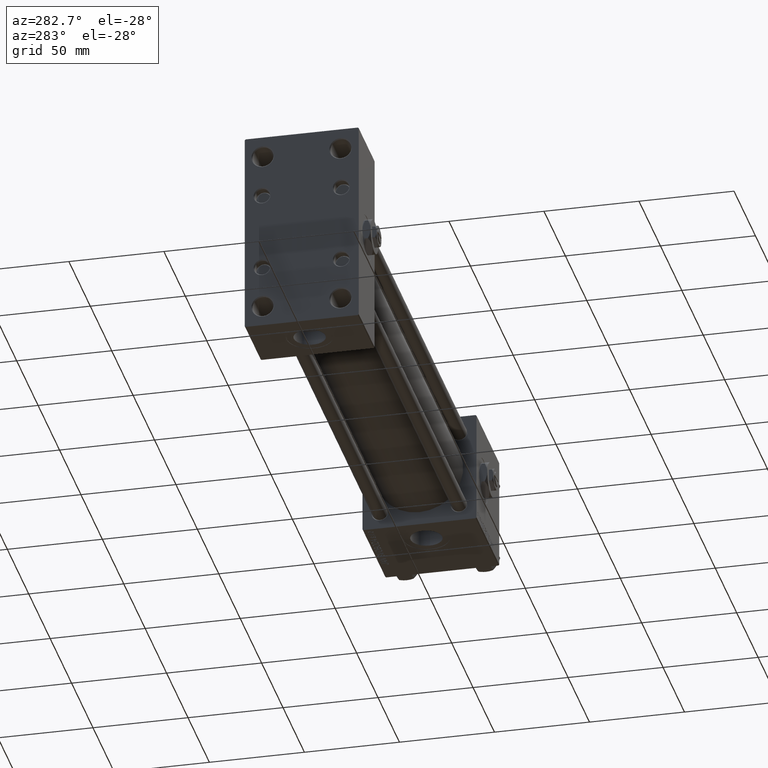
[diagram: clean part render]
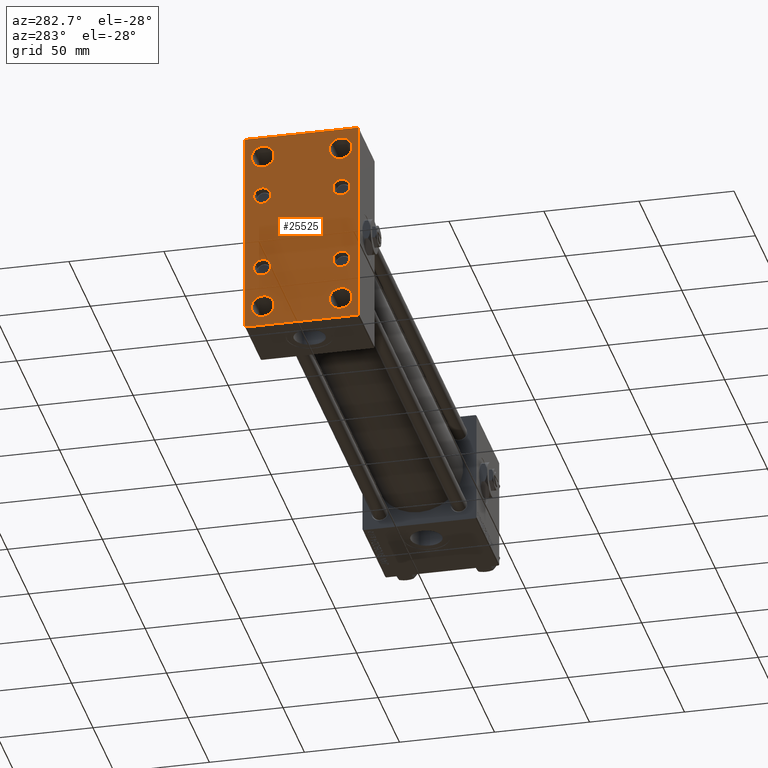
[diagram: same view with one face highlighted and labeled with its STEP entity id]
A machine part, auxiliary view. The second image highlights one B-rep face of the part: STEP entity #25525.
In plain terms, the highlighted planar face has unit normal (-1, 0, 0).
Its self-contained STEP definition (entity closure, byte-faithful):
#172 = LINE ( 'NONE', #21249, #44844 ) ;
#256 = CARTESIAN_POINT ( 'NONE',  ( 0.000000000000000000, 20.84999999999999787, 25.34999999999999076 ) ) ;
#464 = ORIENTED_EDGE ( 'NONE', *, *, #25060, .T. ) ;
#470 = CARTESIAN_POINT ( 'NONE',  ( 0.000000000000000000, 20.50000000000000355, 43.50000000000000000 ) ) ;
#479 = DIRECTION ( 'NONE',  ( 0.000000000000000000, 0.000000000000000000, 1.000000000000000000 ) ) ;
#530 = DIRECTION ( 'NONE',  ( 0.000000000000000000, 0.000000000000000000, 1.000000000000000000 ) ) ;
#536 = DIRECTION ( 'NONE',  ( 1.000000000000000000, -0.000000000000000000, 0.000000000000000000 ) ) ;
#666 = VERTEX_POINT ( 'NONE', #35229 ) ;
#742 = ORIENTED_EDGE ( 'NONE', *, *, #33876, .T. ) ;
#883 = EDGE_CURVE ( 'NONE', #1567, #2008, #36547, .T. ) ;
#994 = ORIENTED_EDGE ( 'NONE', *, *, #18031, .F. ) ;
#1033 = AXIS2_PLACEMENT_3D ( 'NONE', #30685, #14090, #18321 ) ;
#1123 = CARTESIAN_POINT ( 'NONE',  ( 0.000000000000000000, 41.99999999999997868, -41.99999999999997868 ) ) ;
#1230 = ORIENTED_EDGE ( 'NONE', *, *, #21209, .T. ) ;
#1488 = CARTESIAN_POINT ( 'NONE',  ( 0.000000000000000000, -20.84999999999999076, 20.85000000000000497 ) ) ;
#1567 = VERTEX_POINT ( 'NONE', #13162 ) ;
#1734 = VECTOR ( 'NONE', #14656, 1000.000000000000114 ) ;
#2008 = VERTEX_POINT ( 'NONE', #4285 ) ;
#2154 = CARTESIAN_POINT ( 'NONE',  ( 0.000000000000000000, 30.00000000000000355, -54.49999999999998579 ) ) ;
#2155 = CARTESIAN_POINT ( 'NONE',  ( 0.000000000000000000, 30.00000000000000355, 54.50000000000001421 ) ) ;
#2236 = ORIENTED_EDGE ( 'NONE', *, *, #25148, .T. ) ;
#2352 = FACE_BOUND ( 'NONE', #46398, .T. ) ;
#2403 = AXIS2_PLACEMENT_3D ( 'NONE', #8096, #32865, #479 ) ;
#2701 = AXIS2_PLACEMENT_3D ( 'NONE', #48993, #12938, #47965 ) ;
#2739 = CARTESIAN_POINT ( 'NONE',  ( 0.000000000000000000, 20.84999999999999787, -25.34999999999999076 ) ) ;
#3163 = CARTESIAN_POINT ( 'NONE',  ( 0.000000000000000000, 29.49999999999997513, -54.49999999999998579 ) ) ;
#3182 = VERTEX_POINT ( 'NONE', #45810 ) ;
#3750 = AXIS2_PLACEMENT_3D ( 'NONE', #8604, #24696, #16799 ) ;
#4285 = CARTESIAN_POINT ( 'NONE',  ( 0.000000000000000000, -20.84999999999999076, -25.34999999999999432 ) ) ;
#4443 = ORIENTED_EDGE ( 'NONE', *, *, #22416, .T. ) ;
#5132 = VERTEX_POINT ( 'NONE', #3163 ) ;
#5224 = VECTOR ( 'NONE', #24292, 1000.000000000000114 ) ;
#5836 = DIRECTION ( 'NONE',  ( 0.000000000000000000, 0.000000000000000000, -1.000000000000000000 ) ) ;
#6452 = CARTESIAN_POINT ( 'NONE',  ( 0.000000000000000000, 20.84999999999999787, 16.35000000000001208 ) ) ;
#6465 = CARTESIAN_POINT ( 'NONE',  ( 0.000000000000000000, -20.49999999999999645, 43.50000000000000000 ) ) ;
#7162 = EDGE_CURVE ( 'NONE', #39746, #30973, #51654, .T. ) ;
#7626 = EDGE_LOOP ( 'NONE', ( #41059, #32558 ) ) ;
#8096 = CARTESIAN_POINT ( 'NONE',  ( 0.000000000000000000, 20.50000000000000355, 43.50000000000000000 ) ) ;
#8485 = CARTESIAN_POINT ( 'NONE',  ( 0.000000000000000000, 20.84999999999999787, -20.85000000000000142 ) ) ;
#8604 = CARTESIAN_POINT ( 'NONE',  ( 0.000000000000000000, -20.84999999999999076, -20.85000000000000497 ) ) ;
#9061 = AXIS2_PLACEMENT_3D ( 'NONE', #1488, #17822, #10401 ) ;
#9179 = CARTESIAN_POINT ( 'NONE',  ( 0.000000000000000000, 20.50000000000000355, 49.50000000000005684 ) ) ;
#9994 = DIRECTION ( 'NONE',  ( -1.000000000000000000, 0.000000000000000000, -0.000000000000000000 ) ) ;
#10401 = DIRECTION ( 'NONE',  ( 0.000000000000000000, 0.000000000000000000, 1.000000000000000000 ) ) ;
#10692 = ORIENTED_EDGE ( 'NONE', *, *, #36482, .T. ) ;
#10717 = ORIENTED_EDGE ( 'NONE', *, *, #36406, .F. ) ;
#10789 = CIRCLE ( 'NONE', #31821, 6.000000000000060396 ) ;
#11208 = CIRCLE ( 'NONE', #13724, 4.499999999999990230 ) ;
#11471 = EDGE_CURVE ( 'NONE', #30973, #39746, #27438, .T. ) ;
#11804 = ORIENTED_EDGE ( 'NONE', *, *, #46164, .T. ) ;
#12035 = VERTEX_POINT ( 'NONE', #43339 ) ;
#12289 = CIRCLE ( 'NONE', #34984, 4.499999999999990230 ) ;
#12420 = CARTESIAN_POINT ( 'NONE',  ( -0.000000000000000000, -42.00000000000000000, 42.00000000000000000 ) ) ;
#12628 = VECTOR ( 'NONE', #5836, 1000.000000000000000 ) ;
#12938 = DIRECTION ( 'NONE',  ( 1.000000000000000000, -0.000000000000000000, 0.000000000000000000 ) ) ;
#13162 = CARTESIAN_POINT ( 'NONE',  ( 0.000000000000000000, -20.84999999999999076, -16.35000000000001208 ) ) ;
#13203 = CARTESIAN_POINT ( 'NONE',  ( 0.000000000000000000, 20.50000000000000355, -43.50000000000000000 ) ) ;
#13235 = DIRECTION ( 'NONE',  ( -0.000000000000000000, -0.7071067811865474617, -0.7071067811865474617 ) ) ;
#13239 = AXIS2_PLACEMENT_3D ( 'NONE', #26441, #18278, #50630 ) ;
#13724 = AXIS2_PLACEMENT_3D ( 'NONE', #42471, #26190, #31174 ) ;
#13944 = CARTESIAN_POINT ( 'NONE',  ( 0.000000000000000000, 0.000000000000000000, 0.000000000000000000 ) ) ;
#14090 = DIRECTION ( 'NONE',  ( 1.000000000000000000, -0.000000000000000000, 0.000000000000000000 ) ) ;
#14656 = DIRECTION ( 'NONE',  ( 0.000000000000000000, 0.7071067811865474617, -0.7071067811865474617 ) ) ;
#15646 = EDGE_CURVE ( 'NONE', #20599, #38429, #31788, .T. ) ;
#15929 = CARTESIAN_POINT ( 'NONE',  ( 0.000000000000000000, 20.50000000000000355, -37.49999999999993605 ) ) ;
#16414 = DIRECTION ( 'NONE',  ( 0.000000000000000000, 0.000000000000000000, 1.000000000000000000 ) ) ;
#16421 = LINE ( 'NONE', #1123, #19379 ) ;
#16439 = VERTEX_POINT ( 'NONE', #6452 ) ;
#16799 = DIRECTION ( 'NONE',  ( 0.000000000000000000, 0.000000000000000000, 1.000000000000000000 ) ) ;
#17026 = CIRCLE ( 'NONE', #2701, 4.499999999999990230 ) ;
#17375 = CARTESIAN_POINT ( 'NONE',  ( 0.000000000000000000, 29.50000000000000355, 54.50000000000001421 ) ) ;
#17662 = FACE_BOUND ( 'NONE', #45532, .T. ) ;
#17822 = DIRECTION ( 'NONE',  ( 1.000000000000000000, -0.000000000000000000, 0.000000000000000000 ) ) ;
#17912 = CARTESIAN_POINT ( 'NONE',  ( 0.000000000000000000, -20.84999999999999076, 20.85000000000000497 ) ) ;
#18022 = EDGE_CURVE ( 'NONE', #31181, #25642, #29232, .T. ) ;
#18031 = EDGE_CURVE ( 'NONE', #666, #32037, #27222, .T. ) ;
#18278 = DIRECTION ( 'NONE',  ( 1.000000000000000000, -0.000000000000000000, 0.000000000000000000 ) ) ;
#18321 = DIRECTION ( 'NONE',  ( 0.000000000000000000, 0.000000000000000000, 1.000000000000000000 ) ) ;
#18406 = ORIENTED_EDGE ( 'NONE', *, *, #18022, .T. ) ;
#18685 = DIRECTION ( 'NONE',  ( 0.000000000000000000, 0.000000000000000000, 1.000000000000000000 ) ) ;
#19379 = VECTOR ( 'NONE', #13235, 1000.000000000000114 ) ;
#20205 = ORIENTED_EDGE ( 'NONE', *, *, #25870, .T. ) ;
#20387 = VERTEX_POINT ( 'NONE', #34452 ) ;
#20398 = VERTEX_POINT ( 'NONE', #17375 ) ;
#20531 = EDGE_CURVE ( 'NONE', #20387, #28872, #10789, .T. ) ;
#20599 = VERTEX_POINT ( 'NONE', #22045 ) ;
#20720 = VERTEX_POINT ( 'NONE', #34645 ) ;
#21209 = EDGE_CURVE ( 'NONE', #32139, #42084, #46107, .T. ) ;
#21249 = CARTESIAN_POINT ( 'NONE',  ( 0.000000000000000000, -41.99999999999978684, -42.00000000000036948 ) ) ;
#21442 = EDGE_CURVE ( 'NONE', #28872, #20387, #25140, .T. ) ;
#21821 = CARTESIAN_POINT ( 'NONE',  ( 0.000000000000000000, -20.84999999999999076, 25.34999999999999432 ) ) ;
#22009 = AXIS2_PLACEMENT_3D ( 'NONE', #13203, #36624, #48994 ) ;
#22045 = CARTESIAN_POINT ( 'NONE',  ( 0.000000000000000000, -20.84999999999999076, 16.35000000000001208 ) ) ;
#22416 = EDGE_CURVE ( 'NONE', #20720, #30780, #49528, .T. ) ;
#22439 = LINE ( 'NONE', #2154, #25016 ) ;
#22818 = DIRECTION ( 'NONE',  ( 1.000000000000000000, -0.000000000000000000, 0.000000000000000000 ) ) ;
#22963 = DIRECTION ( 'NONE',  ( 1.000000000000000000, -0.000000000000000000, 0.000000000000000000 ) ) ;
#23101 = LINE ( 'NONE', #38868, #1734 ) ;
#23728 = DIRECTION ( 'NONE',  ( 1.000000000000000000, -0.000000000000000000, 0.000000000000000000 ) ) ;
#24040 = AXIS2_PLACEMENT_3D ( 'NONE', #6465, #22818, #42534 ) ;
#24292 = DIRECTION ( 'NONE',  ( -0.000000000000000000, 0.7071067811865474617, 0.7071067811865474617 ) ) ;
#24513 = CARTESIAN_POINT ( 'NONE',  ( 0.000000000000000000, 20.50000000000000355, -43.50000000000000000 ) ) ;
#24607 = CIRCLE ( 'NONE', #1033, 6.000000000000060396 ) ;
#24696 = DIRECTION ( 'NONE',  ( 1.000000000000000000, -0.000000000000000000, 0.000000000000000000 ) ) ;
#25016 = VECTOR ( 'NONE', #26652, 1000.000000000000000 ) ;
#25060 = EDGE_CURVE ( 'NONE', #3182, #5132, #16421, .T. ) ;
#25140 = CIRCLE ( 'NONE', #2403, 6.000000000000060396 ) ;
#25148 = EDGE_CURVE ( 'NONE', #39448, #3182, #38213, .T. ) ;
#25179 = AXIS2_PLACEMENT_3D ( 'NONE', #36581, #23728, #530 ) ;
#25525 = ADVANCED_FACE ( 'NONE', ( #30027, #33707, #38404, #25826, #46060, #17662, #2352, #33450, #25565 ), #33961, .T. ) ;
#25565 = FACE_OUTER_BOUND ( 'NONE', #45269, .T. ) ;
#25642 = VERTEX_POINT ( 'NONE', #26860 ) ;
#25744 = AXIS2_PLACEMENT_3D ( 'NONE', #8485, #44303, #16414 ) ;
#25826 = FACE_BOUND ( 'NONE', #48435, .T. ) ;
#25870 = EDGE_CURVE ( 'NONE', #20398, #39448, #23101, .T. ) ;
#26190 = DIRECTION ( 'NONE',  ( 1.000000000000000000, -0.000000000000000000, 0.000000000000000000 ) ) ;
#26441 = CARTESIAN_POINT ( 'NONE',  ( 0.000000000000000000, -20.49999999999999645, -43.50000000000000000 ) ) ;
#26463 = CARTESIAN_POINT ( 'NONE',  ( 0.000000000000000000, 20.84999999999999787, -16.35000000000001208 ) ) ;
#26522 = CARTESIAN_POINT ( 'NONE',  ( 0.000000000000000000, 30.00000000000000355, 54.00000000000001421 ) ) ;
#26590 = DIRECTION ( 'NONE',  ( -0.000000000000000000, 0.000000000000000000, 1.000000000000000000 ) ) ;
#26652 = DIRECTION ( 'NONE',  ( 0.000000000000000000, -1.000000000000000000, -2.312964634635742957E-16 ) ) ;
#26860 = CARTESIAN_POINT ( 'NONE',  ( 0.000000000000000000, -20.49999999999999645, -49.50000000000005684 ) ) ;
#27222 = LINE ( 'NONE', #42981, #42642 ) ;
#27237 = EDGE_LOOP ( 'NONE', ( #37306, #10692 ) ) ;
#27438 = CIRCLE ( 'NONE', #25744, 4.499999999999990230 ) ;
#27629 = EDGE_CURVE ( 'NONE', #42084, #32139, #37937, .T. ) ;
#27954 = CARTESIAN_POINT ( 'NONE',  ( 0.000000000000000000, -29.49999999999998224, -54.50000000000000000 ) ) ;
#28419 = DIRECTION ( 'NONE',  ( 0.000000000000000000, 0.000000000000000000, 1.000000000000000000 ) ) ;
#28872 = VERTEX_POINT ( 'NONE', #9179 ) ;
#29232 = CIRCLE ( 'NONE', #13239, 6.000000000000060396 ) ;
#29378 = CARTESIAN_POINT ( 'NONE',  ( 0.000000000000000000, 30.00000000000000355, 54.50000000000001421 ) ) ;
#29845 = ORIENTED_EDGE ( 'NONE', *, *, #41051, .T. ) ;
#30027 = FACE_BOUND ( 'NONE', #7626, .T. ) ;
#30273 = EDGE_LOOP ( 'NONE', ( #43707, #4443 ) ) ;
#30465 = VERTEX_POINT ( 'NONE', #27954 ) ;
#30685 = CARTESIAN_POINT ( 'NONE',  ( 0.000000000000000000, -20.49999999999999645, -43.50000000000000000 ) ) ;
#30780 = VERTEX_POINT ( 'NONE', #38664 ) ;
#30973 = VERTEX_POINT ( 'NONE', #2739 ) ;
#31174 = DIRECTION ( 'NONE',  ( 0.000000000000000000, 0.000000000000000000, 1.000000000000000000 ) ) ;
#31181 = VERTEX_POINT ( 'NONE', #37958 ) ;
#31788 = CIRCLE ( 'NONE', #9061, 4.499999999999990230 ) ;
#31821 = AXIS2_PLACEMENT_3D ( 'NONE', #470, #32597, #48641 ) ;
#32037 = VERTEX_POINT ( 'NONE', #40433 ) ;
#32139 = VERTEX_POINT ( 'NONE', #35333 ) ;
#32558 = ORIENTED_EDGE ( 'NONE', *, *, #20531, .T. ) ;
#32597 = DIRECTION ( 'NONE',  ( 1.000000000000000000, -0.000000000000000000, 0.000000000000000000 ) ) ;
#32865 = DIRECTION ( 'NONE',  ( 1.000000000000000000, -0.000000000000000000, 0.000000000000000000 ) ) ;
#33450 = FACE_BOUND ( 'NONE', #27237, .T. ) ;
#33707 = FACE_BOUND ( 'NONE', #30273, .T. ) ;
#33876 = EDGE_CURVE ( 'NONE', #25642, #31181, #24607, .T. ) ;
#33961 = PLANE ( 'NONE',  #48772 ) ;
#34187 = EDGE_CURVE ( 'NONE', #666, #12035, #40320, .T. ) ;
#34293 = EDGE_CURVE ( 'NONE', #2008, #1567, #17026, .T. ) ;
#34452 = CARTESIAN_POINT ( 'NONE',  ( 0.000000000000000000, 20.50000000000000355, 37.49999999999993605 ) ) ;
#34566 = DIRECTION ( 'NONE',  ( 0.000000000000000000, 0.000000000000000000, 1.000000000000000000 ) ) ;
#34645 = CARTESIAN_POINT ( 'NONE',  ( 0.000000000000000000, -20.49999999999999645, 37.49999999999993605 ) ) ;
#34984 = AXIS2_PLACEMENT_3D ( 'NONE', #17912, #46828, #18685 ) ;
#35229 = CARTESIAN_POINT ( 'NONE',  ( 0.000000000000000000, -29.99999999999999645, 54.00000000000002132 ) ) ;
#35333 = CARTESIAN_POINT ( 'NONE',  ( 0.000000000000000000, 20.50000000000000355, -49.50000000000005684 ) ) ;
#36406 = EDGE_CURVE ( 'NONE', #20398, #12035, #45143, .T. ) ;
#36482 = EDGE_CURVE ( 'NONE', #16439, #43927, #11208, .T. ) ;
#36547 = CIRCLE ( 'NONE', #3750, 4.499999999999990230 ) ;
#36581 = CARTESIAN_POINT ( 'NONE',  ( 0.000000000000000000, -20.49999999999999645, 43.50000000000000000 ) ) ;
#36624 = DIRECTION ( 'NONE',  ( 1.000000000000000000, -0.000000000000000000, 0.000000000000000000 ) ) ;
#37275 = AXIS2_PLACEMENT_3D ( 'NONE', #48132, #22963, #28419 ) ;
#37306 = ORIENTED_EDGE ( 'NONE', *, *, #40055, .T. ) ;
#37627 = DIRECTION ( 'NONE',  ( 0.000000000000000000, 0.000000000000000000, 1.000000000000000000 ) ) ;
#37698 = ORIENTED_EDGE ( 'NONE', *, *, #15646, .T. ) ;
#37728 = AXIS2_PLACEMENT_3D ( 'NONE', #24513, #536, #37627 ) ;
#37937 = CIRCLE ( 'NONE', #22009, 6.000000000000060396 ) ;
#37958 = CARTESIAN_POINT ( 'NONE',  ( 0.000000000000000000, -20.49999999999999645, -37.49999999999993605 ) ) ;
#38213 = LINE ( 'NONE', #2155, #12628 ) ;
#38404 = FACE_BOUND ( 'NONE', #48673, .T. ) ;
#38429 = VERTEX_POINT ( 'NONE', #21821 ) ;
#38664 = CARTESIAN_POINT ( 'NONE',  ( 0.000000000000000000, -20.49999999999999645, 49.50000000000005684 ) ) ;
#38826 = ORIENTED_EDGE ( 'NONE', *, *, #34187, .T. ) ;
#38868 = CARTESIAN_POINT ( 'NONE',  ( 0.000000000000000000, 42.00000000000000711, 42.00000000000000711 ) ) ;
#38991 = ORIENTED_EDGE ( 'NONE', *, *, #34293, .T. ) ;
#39134 = ORIENTED_EDGE ( 'NONE', *, *, #7162, .T. ) ;
#39157 = CIRCLE ( 'NONE', #24040, 6.000000000000060396 ) ;
#39448 = VERTEX_POINT ( 'NONE', #26522 ) ;
#39746 = VERTEX_POINT ( 'NONE', #26463 ) ;
#40055 = EDGE_CURVE ( 'NONE', #43927, #16439, #51564, .T. ) ;
#40320 = LINE ( 'NONE', #12420, #5224 ) ;
#40433 = CARTESIAN_POINT ( 'NONE',  ( 0.000000000000000000, -29.99999999999999645, -53.99999999999996447 ) ) ;
#41051 = EDGE_CURVE ( 'NONE', #30465, #32037, #172, .T. ) ;
#41059 = ORIENTED_EDGE ( 'NONE', *, *, #21442, .T. ) ;
#41192 = DIRECTION ( 'NONE',  ( 0.000000000000000000, -1.000000000000000000, -1.156482317317871478E-16 ) ) ;
#41455 = VECTOR ( 'NONE', #41192, 1000.000000000000000 ) ;
#42084 = VERTEX_POINT ( 'NONE', #15929 ) ;
#42457 = CARTESIAN_POINT ( 'NONE',  ( 0.000000000000000000, 20.84999999999999787, -20.85000000000000142 ) ) ;
#42471 = CARTESIAN_POINT ( 'NONE',  ( 0.000000000000000000, 20.84999999999999787, 20.85000000000000142 ) ) ;
#42534 = DIRECTION ( 'NONE',  ( 0.000000000000000000, 0.000000000000000000, 1.000000000000000000 ) ) ;
#42642 = VECTOR ( 'NONE', #46416, 1000.000000000000000 ) ;
#42981 = CARTESIAN_POINT ( 'NONE',  ( 0.000000000000000000, -29.99999999999999645, 54.50000000000000711 ) ) ;
#43021 = EDGE_LOOP ( 'NONE', ( #11804, #37698 ) ) ;
#43339 = CARTESIAN_POINT ( 'NONE',  ( 0.000000000000000000, -29.50000000000000711, 54.50000000000000711 ) ) ;
#43707 = ORIENTED_EDGE ( 'NONE', *, *, #45251, .T. ) ;
#43927 = VERTEX_POINT ( 'NONE', #256 ) ;
#44234 = ORIENTED_EDGE ( 'NONE', *, *, #11471, .T. ) ;
#44303 = DIRECTION ( 'NONE',  ( 1.000000000000000000, -0.000000000000000000, 0.000000000000000000 ) ) ;
#44410 = DIRECTION ( 'NONE',  ( 0.000000000000000000, -0.7071067811865524577, 0.7071067811865426878 ) ) ;
#44844 = VECTOR ( 'NONE', #44410, 1000.000000000000000 ) ;
#45143 = LINE ( 'NONE', #29378, #41455 ) ;
#45251 = EDGE_CURVE ( 'NONE', #30780, #20720, #39157, .T. ) ;
#45269 = EDGE_LOOP ( 'NONE', ( #2236, #464, #51554, #29845, #994, #38826, #10717, #20205 ) ) ;
#45532 = EDGE_LOOP ( 'NONE', ( #46717, #38991 ) ) ;
#45810 = CARTESIAN_POINT ( 'NONE',  ( 0.000000000000000000, 30.00000000000000355, -53.99999999999995737 ) ) ;
#46060 = FACE_BOUND ( 'NONE', #43021, .T. ) ;
#46107 = CIRCLE ( 'NONE', #37728, 6.000000000000060396 ) ;
#46164 = EDGE_CURVE ( 'NONE', #38429, #20599, #12289, .T. ) ;
#46398 = EDGE_LOOP ( 'NONE', ( #39134, #44234 ) ) ;
#46416 = DIRECTION ( 'NONE',  ( 0.000000000000000000, 0.000000000000000000, -1.000000000000000000 ) ) ;
#46717 = ORIENTED_EDGE ( 'NONE', *, *, #883, .T. ) ;
#46828 = DIRECTION ( 'NONE',  ( 1.000000000000000000, -0.000000000000000000, 0.000000000000000000 ) ) ;
#46869 = ORIENTED_EDGE ( 'NONE', *, *, #27629, .T. ) ;
#47965 = DIRECTION ( 'NONE',  ( 0.000000000000000000, 0.000000000000000000, 1.000000000000000000 ) ) ;
#48132 = CARTESIAN_POINT ( 'NONE',  ( 0.000000000000000000, 20.84999999999999787, 20.85000000000000142 ) ) ;
#48435 = EDGE_LOOP ( 'NONE', ( #46869, #1230 ) ) ;
#48491 = EDGE_CURVE ( 'NONE', #5132, #30465, #22439, .T. ) ;
#48641 = DIRECTION ( 'NONE',  ( 0.000000000000000000, 0.000000000000000000, 1.000000000000000000 ) ) ;
#48673 = EDGE_LOOP ( 'NONE', ( #18406, #742 ) ) ;
#48772 = AXIS2_PLACEMENT_3D ( 'NONE', #13944, #9994, #26590 ) ;
#48993 = CARTESIAN_POINT ( 'NONE',  ( 0.000000000000000000, -20.84999999999999076, -20.85000000000000497 ) ) ;
#48994 = DIRECTION ( 'NONE',  ( 0.000000000000000000, 0.000000000000000000, 1.000000000000000000 ) ) ;
#49129 = AXIS2_PLACEMENT_3D ( 'NONE', #42457, #51412, #34566 ) ;
#49528 = CIRCLE ( 'NONE', #25179, 6.000000000000060396 ) ;
#50630 = DIRECTION ( 'NONE',  ( 0.000000000000000000, 0.000000000000000000, 1.000000000000000000 ) ) ;
#51412 = DIRECTION ( 'NONE',  ( 1.000000000000000000, -0.000000000000000000, 0.000000000000000000 ) ) ;
#51554 = ORIENTED_EDGE ( 'NONE', *, *, #48491, .T. ) ;
#51564 = CIRCLE ( 'NONE', #37275, 4.499999999999990230 ) ;
#51654 = CIRCLE ( 'NONE', #49129, 4.499999999999990230 ) ;